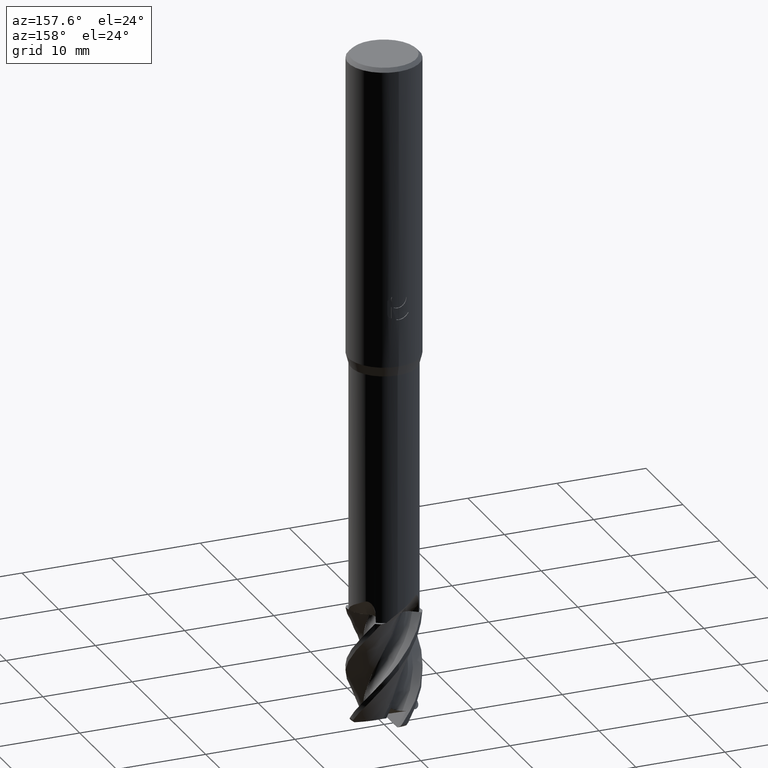
[diagram: clean part render]
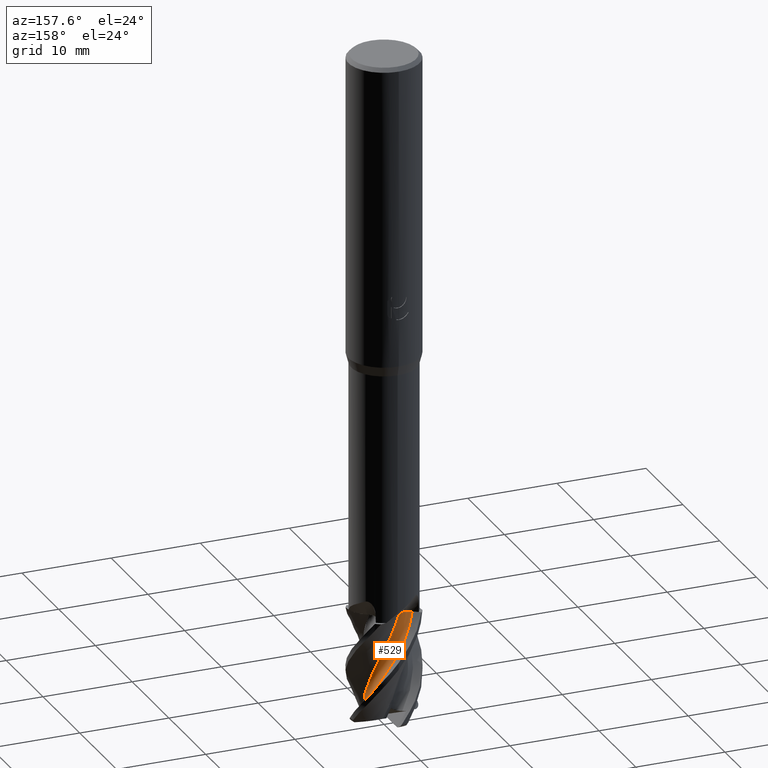
[diagram: same view with one face highlighted and labeled with its STEP entity id]
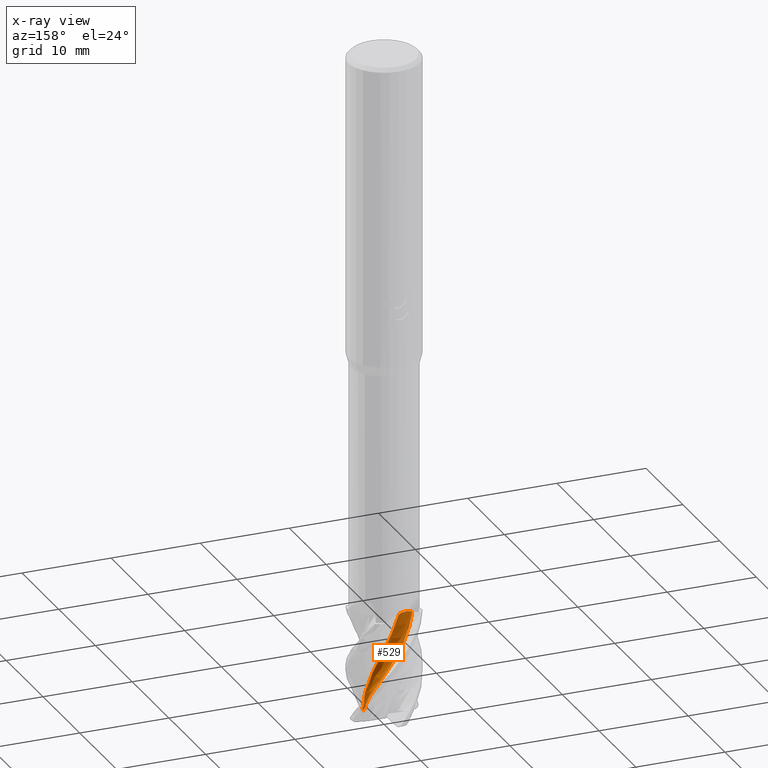
[diagram: x-ray of the same camera — body ghosted, the highlighted face saturated]
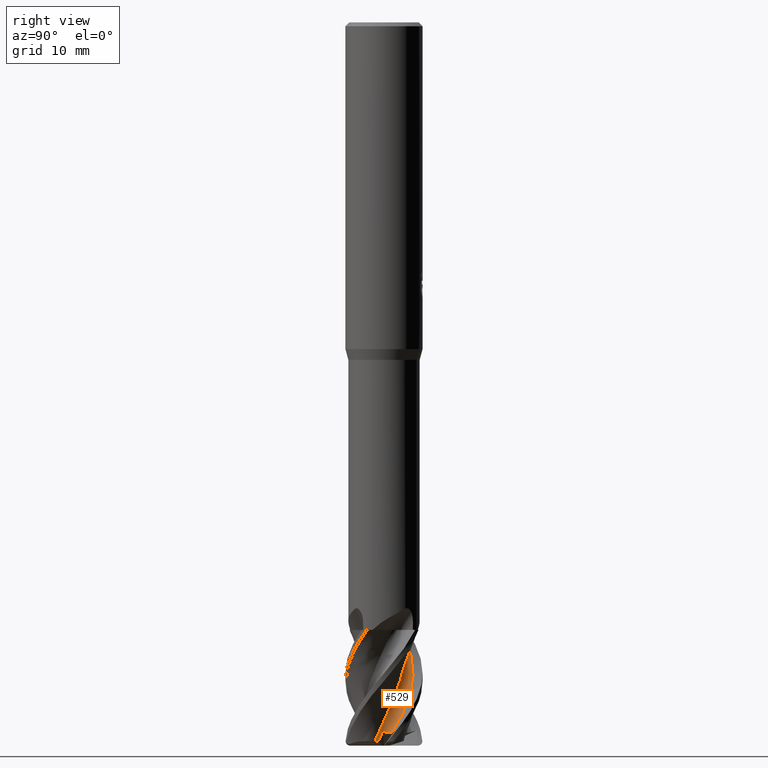
[diagram: same view with one face highlighted and labeled with its STEP entity id]
A machine part, auxiliary view. The second image highlights one B-rep face of the part: STEP entity #529.
The next image is the same camera in x-ray: the body ghosted, the highlighted face saturated — about 0% of this face is hidden behind the body in this view.
A second angle (right view) of the same face is appended — the face is thin or edge-on in the first view.
In plain terms, the highlighted face is a freeform B-spline surface patch.
Its self-contained STEP definition (entity closure, byte-faithful):
#529=ADVANCED_FACE('',(#1518),#1519,.T.);
#547=EDGE_CURVE('',#915,#795,#1537,.T.);
#581=EDGE_CURVE('',#873,#793,#1571,.T.);
#657=EDGE_CURVE('',#793,#1453,#1655,.T.);
#793=VERTEX_POINT('',#1803);
#795=VERTEX_POINT('',#1805);
#825=EDGE_CURVE('',#915,#1185,#1835,.T.);
#873=VERTEX_POINT('',#1887);
#915=VERTEX_POINT('',#1935);
#1185=VERTEX_POINT('',#2227);
#1269=EDGE_CURVE('',#1453,#1185,#2321,.T.);
#1453=VERTEX_POINT('',#2527);
#1473=EDGE_CURVE('',#795,#873,#2549,.T.);
#1518=FACE_OUTER_BOUND('',#2591,.T.);
#1519=B_SPLINE_SURFACE_WITH_KNOTS('',3,3,((#2592,#2593,#2594,#2595,#2596,#2597,#2598,#2599,#2600,#2601,#2602,#2603,#2604,#2605,#2606,#2607,#2608,#2609,#2610,#2611,#2612,#2613,#2614,#2615,#2616,#2617,#2618,#2619,#2620,#2621,#2622,#2623,#2624,#2625,#2626,#2627,#2628,#2629,#2630,#2631),(#2632,#2633,#2634,#2635,#2636,#2637,#2638,#2639,#2640,#2641,#2642,#2643,#2644,#2645,#2646,#2647,#2648,#2649,#2650,#2651,#2652,#2653,#2654,#2655,#2656,#2657,#2658,#2659,#2660,#2661,#2662,#2663,#2664,#2665,#2666,#2667,#2668,#2669,#2670,#2671),(#2672,#2673,#2674,#2675,#2676,#2677,#2678,#2679,#2680,#2681,#2682,#2683,#2684,#2685,#2686,#2687,#2688,#2689,#2690,#2691,#2692,#2693,#2694,#2695,#2696,#2697,#2698,#2699,#2700,#2701,#2702,#2703,#2704,#2705,#2706,#2707,#2708,#2709,#2710,#2711),(#2712,#2713,#2714,#2715,#2716,#2717,#2718,#2719,#2720,#2721,#2722,#2723,#2724,#2725,#2726,#2727,#2728,#2729,#2730,#2731,#2732,#2733,#2734,#2735,#2736,#2737,#2738,#2739,#2740,#2741,#2742,#2743,#2744,#2745,#2746,#2747,#2748,#2749,#2750,#2751),(#2752,#2753,#2754,#2755,#2756,#2757,#2758,#2759,#2760,#2761,#2762,#2763,#2764,#2765,#2766,#2767,#2768,#2769,#2770,#2771,#2772,#2773,#2774,#2775,#2776,#2777,#2778,#2779,#2780,#2781,#2782,#2783,#2784,#2785,#2786,#2787,#2788,#2789,#2790,#2791),(#2792,#2793,#2794,#2795,#2796,#2797,#2798,#2799,#2800,#2801,#2802,#2803,#2804,#2805,#2806,#2807,#2808,#2809,#2810,#2811,#2812,#2813,#2814,#2815,#2816,#2817,#2818,#2819,#2820,#2821,#2822,#2823,#2824,#2825,#2826,#2827,#2828,#2829,#2830,#2831),(#2832,#2833,#2834,#2835,#2836,#2837,#2838,#2839,#2840,#2841,#2842,#2843,#2844,#2845,#2846,#2847,#2848,#2849,#2850,#2851,#2852,#2853,#2854,#2855,#2856,#2857,#2858,#2859,#2860,#2861,#2862,#2863,#2864,#2865,#2866,#2867,#2868,#2869,#2870,#2871)),.UNSPECIFIED.,.F.,.F.,.F.,(4,1,1,1,4),(4,1,2,2,1,2,1,1,2,1,1,2,1,1,1,2,1,1,2,1,1,2,1,1,1,2,1,1,4),(3.86164530321994E-016,0.392699081655247,0.785398163310493,1.17809724496574,1.57079632662099),(0.0,0.439032880743634,0.878065761487268,1.75613152297454,2.63419728446181,3.51226304594907,4.39032880743634,5.70742744966724,7.02452609189815,8.34162473412905,9.65872337635995,10.5367891378472,11.4148548993345,12.2929206608218,13.170986422309,14.0490521837963,14.9271179452836,16.2442165875145,17.5613152297454,18.8784138719763,20.1955125142072,21.0735782756944,21.9516440371817,22.829709798669,23.7077755601562,24.5858413216435,25.4639070831308,26.7810057253617,28.0981043675926),.UNSPECIFIED.);
#1537=B_SPLINE_CURVE_WITH_KNOTS('',3,(#2897,#2898,#2899,#2900,#2901,#2902,#2903,#2904,#2905,#2906,#2907,#2908),.UNSPECIFIED.,.F.,.F.,(4,2,2,2,2,4),(0.0,0.590750583543278,1.01775985295275,1.35254139636512,1.64097265576934,1.94555005966309),.UNSPECIFIED.);
#1571=B_SPLINE_CURVE_WITH_KNOTS('',3,(#3031,#3032,#3033,#3034,#3035,#3036),.UNSPECIFIED.,.F.,.F.,(4,2,4),(0.0,0.435159037768682,0.850980679239074),.UNSPECIFIED.);
#1655=B_SPLINE_CURVE_WITH_KNOTS('',3,(#3736,#3737,#3738,#3739,#3740,#3741,#3742,#3743,#3744,#3745,#3746,#3747,#3748,#3749,#3750,#3751,#3752,#3753,#3754,#3755,#3756,#3757),.UNSPECIFIED.,.F.,.F.,(4,2,2,2,2,2,2,2,2,2,4),(-14.3417121469128,-10.7662979568964,-10.1687027815282,-8.88282886473334,-7.1764688564429,-6.17549704798002,-5.19948750206905,-3.26530079930745,-2.0519605695292,-1.36536635655494,-0.0),.UNSPECIFIED.);
#1803=CARTESIAN_POINT('',(1.96921854836948,-0.951426499107517,-74.5370947645449));
#1805=CARTESIAN_POINT('',(2.07928789235397,-0.102925682737477,-73.441348412288));
#1835=B_SPLINE_CURVE_WITH_KNOTS('',3,(#4994,#4995,#4996,#4997,#4998,#4999,#5000,#5001,#5002,#5003,#5004,#5005,#5006,#5007,#5008,#5009,#5010,#5011,#5012,#5013,#5014,#5015,#5016,#5017,#5018,#5019,#5020,#5021,#5022,#5023,#5024,#5025,#5026,#5027,#5028,#5029,#5030,#5031,#5032,#5033),.UNSPECIFIED.,.F.,.F.,(4,1,2,2,1,2,1,1,2,1,1,2,1,1,1,2,1,1,2,1,1,2,1,1,1,2,1,1,4),(0.0,0.439032880743634,0.878065761487268,1.75613152297454,2.63419728446181,3.51226304594907,4.39032880743634,5.70742744966724,7.02452609189815,8.34162473412905,9.65872337635995,10.5367891378472,11.4148548993345,12.2929206608218,13.170986422309,14.0490521837963,14.9271179452836,16.2442165875145,17.5613152297454,18.8784138719763,20.1955125142072,21.0735782756944,21.9516440371817,22.829709798669,23.7077755601562,24.5858413216435,25.4639070831308,26.7810057253617,28.0981043675926),.UNSPECIFIED.);
#1887=CARTESIAN_POINT('',(2.00383752489607,-0.562090333234073,-74.5258463785281));
#1935=CARTESIAN_POINT('',(2.88306687665594,0.868565806805211,-73.5735661012201));
#2227=CARTESIAN_POINT('',(-2.43105359182728,1.7766079108557,-63.0));
#2321=B_SPLINE_CURVE_WITH_KNOTS('',3,(#7689,#7690,#7691,#7692,#7693,#7694,#7695,#7696,#7697,#7698),.UNSPECIFIED.,.F.,.F.,(4,2,2,2,4),(0.0,0.449322067639275,0.89863545065615,1.34791089101965,1.79976927709847),.UNSPECIFIED.);
#2527=CARTESIAN_POINT('',(-0.840439479933691,2.01974961307368,-63.0));
#2549=B_SPLINE_CURVE_WITH_KNOTS('',3,(#9793,#9794,#9795,#9796,#9797,#9798,#9799,#9800),.UNSPECIFIED.,.F.,.F.,(4,2,2,4),(0.0,0.873910979636382,2.22012321292324,4.76113550023293),.UNSPECIFIED.);
#2591=EDGE_LOOP('',(#10290,#10291,#10292,#10293,#10294,#10295));
#2592=CARTESIAN_POINT('',(-1.23488445277643,-1.80476047958255,-83.0));
#2593=CARTESIAN_POINT('',(-1.24899732605723,-1.8038329316075,-82.8541668060559));
#2594=CARTESIAN_POINT('',(-1.23526252068316,-1.82663038862667,-82.5622807470162));
#2595=CARTESIAN_POINT('',(-1.13196860429146,-1.89424450104118,-82.2702886162226));
#2596=CARTESIAN_POINT('',(-0.902413143319348,-2.01289174000655,-81.8330158930863));
#2597=CARTESIAN_POINT('',(-0.762688947168786,-2.06561187469398,-81.5416795417568));
#2598=CARTESIAN_POINT('',(-0.513749774778815,-2.14213575042085,-80.9583014420079));
#2599=CARTESIAN_POINT('',(-0.258072170567404,-2.19671372933943,-80.3748465653797));
#2600=CARTESIAN_POINT('',(0.0144985536196439,-2.20401655425792,-79.791351998043));
#2601=CARTESIAN_POINT('',(0.295245856111041,-2.18308142086931,-79.2080163304363));
#2602=CARTESIAN_POINT('',(0.630854993808257,-2.12568898632936,-78.4790300952215));
#2603=CARTESIAN_POINT('',(1.11213080316052,-1.92898425431896,-77.3124283706013));
#2604=CARTESIAN_POINT('',(1.43445985979555,-1.68229480317857,-76.4370925693439));
#2605=CARTESIAN_POINT('',(1.72921651348788,-1.37403033815834,-75.5621178036424));
#2606=CARTESIAN_POINT('',(1.96459926422362,-1.04392707713692,-74.6874682186711));
#2607=CARTESIAN_POINT('',(2.14912348513055,-0.556023870373244,-73.520693184653));
#2608=CARTESIAN_POINT('',(2.19405063765961,-0.215926956189522,-72.7913204102272));
#2609=CARTESIAN_POINT('',(2.20221304361762,0.0678076341076892,-72.2079802032174));
#2610=CARTESIAN_POINT('',(2.18396201899548,0.341577948461111,-71.624798795716));
#2611=CARTESIAN_POINT('',(2.08938065581622,0.723892652717236,-70.7499348305022));
#2612=CARTESIAN_POINT('',(1.9291385075934,1.08375945433396,-69.8747905124629));
#2613=CARTESIAN_POINT('',(1.77335401741663,1.30982738906713,-69.2912994637427));
#2614=CARTESIAN_POINT('',(1.58926916721142,1.52594071794985,-68.7079671062677));
#2615=CARTESIAN_POINT('',(1.34297618746993,1.76454731028696,-67.9790039941923));
#2616=CARTESIAN_POINT('',(0.898438691472285,2.03713975274847,-66.8124608541564));
#2617=CARTESIAN_POINT('',(0.509456702744176,2.1512074980498,-65.9371323317856));
#2618=CARTESIAN_POINT('',(0.0874087994749067,2.20689306549706,-65.0621270919979));
#2619=CARTESIAN_POINT('',(-0.317679591668418,2.20197610301907,-64.1874489842645));
#2620=CARTESIAN_POINT('',(-0.82071376219955,2.06262178231599,-63.0206690115767));
#2621=CARTESIAN_POINT('',(-1.12184917101573,1.89784740920309,-62.2913163477237));
#2622=CARTESIAN_POINT('',(-1.35566439527592,1.73678185835601,-61.7079993714707));
#2623=CARTESIAN_POINT('',(-1.56568695755122,1.56041528965224,-61.1248315244738));
#2624=CARTESIAN_POINT('',(-1.81815366706804,1.25855193265369,-60.2499532970464));
#2625=CARTESIAN_POINT('',(-2.01393533789101,0.916725049969723,-59.3747610467907));
#2626=CARTESIAN_POINT('',(-2.10446384331179,0.657007967421567,-58.7912202463649));
#2627=CARTESIAN_POINT('',(-2.17014509918083,0.379924120016686,-58.2078341362455));
#2628=CARTESIAN_POINT('',(-2.21699675717179,0.0391630045993122,-57.4788547496478));
#2629=CARTESIAN_POINT('',(-2.17378314227288,-0.479398483998543,-56.3124514593551));
#2630=CARTESIAN_POINT('',(-2.03852426301241,-0.855536820981206,-55.4372799597113));
#2631=CARTESIAN_POINT('',(-1.93928855728664,-1.03917246562902,-54.9998296805427));
#2632=CARTESIAN_POINT('',(-1.08451158889957,-1.81173773043379,-83.0));
#2633=CARTESIAN_POINT('',(-1.09863034141902,-1.81093688108678,-82.8541671629844));
#2634=CARTESIAN_POINT('',(-1.08473085392731,-1.83110313096932,-82.5623070169101));
#2635=CARTESIAN_POINT('',(-0.981379728096369,-1.89018503989109,-82.2703527964518));
#2636=CARTESIAN_POINT('',(-0.752939838405735,-1.99168969430802,-81.8330529592923));
#2637=CARTESIAN_POINT('',(-0.615135509655419,-2.03448561779381,-81.5416778281607));
#2638=CARTESIAN_POINT('',(-0.370925988694004,-2.09373975325885,-80.9583050998332));
#2639=CARTESIAN_POINT('',(-0.121501739779288,-2.1314681665396,-80.3748645109664));
#2640=CARTESIAN_POINT('',(0.141567798615221,-2.12274013399832,-79.7913888035247));
#2641=CARTESIAN_POINT('',(0.410989172493194,-2.08635566284761,-79.2080533094641));
#2642=CARTESIAN_POINT('',(0.731063246517232,-2.01162030106178,-78.4790457319273));
#2643=CARTESIAN_POINT('',(1.18312867832717,-1.79422066724337,-77.3124362796304));
#2644=CARTESIAN_POINT('',(1.479403960041,-1.53789689287702,-76.437139976668));
#2645=CARTESIAN_POINT('',(1.74578903726565,-1.22371072705594,-75.5621621892229));
#2646=CARTESIAN_POINT('',(1.95344089754611,-0.892011182491829,-74.68747127208));
#2647=CARTESIAN_POINT('',(2.10282070282789,-0.411409907932109,-73.5207088952952));
#2648=CARTESIAN_POINT('',(2.12645537778256,-0.0810764576937081,-72.7913603250601));
#2649=CARTESIAN_POINT('',(2.11795770581645,0.192926576838837,-72.2080208666805));
#2650=CARTESIAN_POINT('',(2.08452762775805,0.455698913365491,-71.62482152529));
#2651=CARTESIAN_POINT('',(1.97123683948067,0.818460703660898,-70.7499414689971));
#2652=CARTESIAN_POINT('',(1.79601305003177,1.15579013856807,-69.8748140745825));
#2653=CARTESIAN_POINT('',(1.63282080373361,1.36463804751105,-69.2913415439498));
#2654=CARTESIAN_POINT('',(1.44288894569609,1.56236269909671,-68.7080090231373));
#2655=CARTESIAN_POINT('',(1.19173163294877,1.77805181210462,-67.9790218780059));
#2656=CARTESIAN_POINT('',(0.747768691567792,2.01475705395103,-66.8124640945539));
#2657=CARTESIAN_POINT('',(0.3664084683967,2.10214371321114,-65.9371741704163));
#2658=CARTESIAN_POINT('',(-0.0436756627956686,2.13148203992678,-65.0621695023098));
#2659=CARTESIAN_POINT('',(-0.433687544402392,2.10325820578228,-64.1874534211358));
#2660=CARTESIAN_POINT('',(-0.910059549256709,1.93984138038762,-63.0206867045836));
#2661=CARTESIAN_POINT('',(-1.19072787927633,1.76364777195912,-62.2913558707407));
#2662=CARTESIAN_POINT('',(-1.40684529137408,1.59488657288887,-61.708036879992));
#2663=CARTESIAN_POINT('',(-1.59903326776186,1.41277218418966,-61.124849462215));
#2664=CARTESIAN_POINT('',(-1.82468901156345,1.10736287388383,-60.2499567765954));
#2665=CARTESIAN_POINT('',(-1.99343602107371,0.766755437875545,-59.3747871052534));
#2666=CARTESIAN_POINT('',(-2.06566625299152,0.511237526647148,-58.791270725813));
#2667=CARTESIAN_POINT('',(-2.11301018606734,0.240318205493875,-58.207890904187));
#2668=CARTESIAN_POINT('',(-2.13844864988664,-0.0907938720674441,-57.4788895877153));
#2669=CARTESIAN_POINT('',(-2.06669974484112,-0.587697334611817,-56.3124558169174));
#2670=CARTESIAN_POINT('',(-1.91461266260775,-0.942190860326765,-55.4373053014624));
#2671=CARTESIAN_POINT('',(-1.80835714786881,-1.11345332349682,-54.9998497342426));
#2672=CARTESIAN_POINT('',(-0.786603781588488,-1.88548678835019,-83.0));
#2673=CARTESIAN_POINT('',(-0.800784671360798,-1.88493694261083,-82.8541678685868));
#2674=CARTESIAN_POINT('',(-0.785509562524195,-1.89990737792584,-82.5623589510549));
#2675=CARTESIAN_POINT('',(-0.678651110776294,-1.94195122631184,-82.2704796773856));
#2676=CARTESIAN_POINT('',(-0.445624949661551,-2.00873431190356,-81.8331262370445));
#2677=CARTESIAN_POINT('',(-0.307713068837983,-2.03092252829303,-81.5416744405081));
#2678=CARTESIAN_POINT('',(-0.0660933513417461,-2.05376366450556,-80.9583123311222));
#2679=CARTESIAN_POINT('',(0.177527243429904,-2.05531332009506,-80.3748999883942));
#2680=CARTESIAN_POINT('',(0.427973275574157,-2.01075207059696,-79.7914615660831));
#2681=CARTESIAN_POINT('',(0.680891157821653,-1.93897154784816,-79.2081264149138));
#2682=CARTESIAN_POINT('',(0.976798272428488,-1.82337993949285,-78.4790766430561));
#2683=CARTESIAN_POINT('',(1.37868480681983,-1.55298337875383,-77.3124519173308));
#2684=CARTESIAN_POINT('',(1.6266947197847,-1.26703442564304,-76.437233703537));
#2685=CARTESIAN_POINT('',(1.83870342510886,-0.929725077585688,-75.5622499319898));
#2686=CARTESIAN_POINT('',(1.99153995880013,-0.583806125795271,-74.6874773298698));
#2687=CARTESIAN_POINT('',(2.06774204391787,-0.103830063710398,-73.5207399548423));
#2688=CARTESIAN_POINT('',(2.04491818436901,0.215447771483156,-72.7914392203663));
#2689=CARTESIAN_POINT('',(1.99923749803661,0.476616867208993,-72.2081012703268));
#2690=CARTESIAN_POINT('',(1.93108223950447,0.723434000784042,-71.6248664595302));
#2691=CARTESIAN_POINT('',(1.77260503953936,1.05453822143192,-70.7499545984251));
#2692=CARTESIAN_POINT('',(1.55846203956992,1.352760033545,-69.8748606481894));
#2693=CARTESIAN_POINT('',(1.37360965108071,1.53012093038335,-69.2914247367665));
#2694=CARTESIAN_POINT('',(1.16467378199884,1.69340109323806,-68.7080918880248));
#2695=CARTESIAN_POINT('',(0.894676443212514,1.86519926108984,-67.9790572382185));
#2696=CARTESIAN_POINT('',(0.437591423849087,2.0299167494119,-66.812470491868));
#2697=CARTESIAN_POINT('',(0.0608614635022938,2.06092156927556,-65.9372569149987));
#2698=CARTESIAN_POINT('',(-0.335777426581477,2.03281900824323,-65.0622533133472));
#2699=CARTESIAN_POINT('',(-0.704910898937065,1.95199588010827,-64.1874622244403));
#2700=CARTESIAN_POINT('',(-1.13753852775925,1.72986167268038,-63.0207217019612));
#2701=CARTESIAN_POINT('',(-1.38182230885188,1.52269542669873,-62.2914339761049));
#2702=CARTESIAN_POINT('',(-1.56561182005094,1.33150844365676,-61.7081110618311));
#2703=CARTESIAN_POINT('',(-1.72442381722574,1.13080870095373,-61.124884938782));
#2704=CARTESIAN_POINT('',(-1.89787901641214,0.80764729094833,-60.2499636719342));
#2705=CARTESIAN_POINT('',(-2.01208315701336,0.458727591534708,-59.3748385797379));
#2706=CARTESIAN_POINT('',(-2.04605470911706,0.204329734823146,-58.7913705456462));
#2707=CARTESIAN_POINT('',(-2.05428031911861,-0.0615551778168808,-58.2080031066763));
#2708=CARTESIAN_POINT('',(-2.03306436375337,-0.381888446442428,-57.4789584638815));
#2709=CARTESIAN_POINT('',(-1.89564432370464,-0.846832361763252,-56.3124644291789));
#2710=CARTESIAN_POINT('',(-1.70130063444149,-1.16473731427619,-55.4373554865941));
#2711=CARTESIAN_POINT('',(-1.57608811271485,-1.31405013039458,-54.9998893793178));
#2712=CARTESIAN_POINT('',(-0.416058765089823,-2.15871202503001,-83.0));
#2713=CARTESIAN_POINT('',(-0.430469863605397,-2.15847438608124,-82.8541687417491));
#2714=CARTESIAN_POINT('',(-0.410305575600104,-2.16703343459151,-82.5624232153674));
#2715=CARTESIAN_POINT('',(-0.288805502674944,-2.18747704743134,-82.2706366821807));
#2716=CARTESIAN_POINT('',(-0.029491165860139,-2.20877105655145,-81.8332169124697));
#2717=CARTESIAN_POINT('',(0.120399618490996,-2.20246008303713,-81.5416702488391));
#2718=CARTESIAN_POINT('',(0.379332912995823,-2.1733485182805,-80.95832127898));
#2719=CARTESIAN_POINT('',(0.635678431201355,-2.12142520851848,-80.3749438890753));
#2720=CARTESIAN_POINT('',(0.889199154995331,-2.01995495895793,-79.7915516036445));
#2721=CARTESIAN_POINT('',(1.13956339050996,-1.8896440087195,-79.2082168771856));
#2722=CARTESIAN_POINT('',(1.42543018578757,-1.70355528649597,-78.479114894077));
#2723=CARTESIAN_POINT('',(1.78819494281398,-1.33090328800892,-77.3124712648457));
#2724=CARTESIAN_POINT('',(1.98631856277315,-0.976189070205571,-76.4373496812965));
#2725=CARTESIAN_POINT('',(2.13623904175705,-0.575617759543988,-75.5623585081932));
#2726=CARTESIAN_POINT('',(2.22126777676851,-0.178524929873727,-74.6874848110669));
#2727=CARTESIAN_POINT('',(2.19569144677631,0.342592280921851,-73.520778388641));
#2728=CARTESIAN_POINT('',(2.10213263997197,0.673217272611002,-72.7915368601038));
#2729=CARTESIAN_POINT('',(1.99755142911055,0.937944268622067,-72.2082007501321));
#2730=CARTESIAN_POINT('',(1.87211026409327,1.1825825194267,-71.6249220647009));
#2731=CARTESIAN_POINT('',(1.63283465109731,1.49575066758298,-70.7499708390081));
#2732=CARTESIAN_POINT('',(1.34230245982284,1.76211345196191,-69.8749182856131));
#2733=CARTESIAN_POINT('',(1.10935543346622,1.90826941911325,-69.2915276762187));
#2734=CARTESIAN_POINT('',(0.854308398447579,2.03472103924008,-68.7081944315167));
#2735=CARTESIAN_POINT('',(0.533004442792807,2.15650433953246,-67.9791009842899));
#2736=CARTESIAN_POINT('',(0.0164085283336564,2.22898425211914,-66.8124784208326));
#2737=CARTESIAN_POINT('',(-0.386270155306047,2.17918957194632,-65.9373592646119));
#2738=CARTESIAN_POINT('',(-0.79724877527366,2.06375945645385,-65.0623570628122));
#2739=CARTESIAN_POINT('',(-1.16764072554433,1.89805192701278,-64.1874730855655));
#2740=CARTESIAN_POINT('',(-1.57334823186988,1.56942783609461,-63.0207649867221));
#2741=CARTESIAN_POINT('',(-1.78498525976277,1.29844901868784,-62.2915306564953));
#2742=CARTESIAN_POINT('',(-1.93684393587363,1.05762354171972,-61.7082028245116));
#2743=CARTESIAN_POINT('',(-2.06006793524628,0.812006254311251,-61.1249288342464));
#2744=CARTESIAN_POINT('',(-2.17136719026582,0.43427589095789,-60.2499721820951));
#2745=CARTESIAN_POINT('',(-2.21475015767113,0.0425256238399583,-59.3749022973149));
#2746=CARTESIAN_POINT('',(-2.1950547322385,-0.232282299466132,-58.7914940595752));
#2747=CARTESIAN_POINT('',(-2.14617492252008,-0.513645718589819,-58.2081419531854));
#2748=CARTESIAN_POINT('',(-2.0541114256272,-0.8458222154787,-57.4790437036825));
#2749=CARTESIAN_POINT('',(-1.80732914143451,-1.30417079176894,-56.3124750923945));
#2750=CARTESIAN_POINT('',(-1.53341690645799,-1.59562378207135,-55.4374175281178));
#2751=CARTESIAN_POINT('',(-1.36933103387525,-1.72539809398985,-54.9999384368909));
#2752=CARTESIAN_POINT('',(-0.178271061176076,-2.5529410162,-83.0));
#2753=CARTESIAN_POINT('',(-0.19301432051037,-2.55290372677635,-82.8541692965989));
#2754=CARTESIAN_POINT('',(-0.165879482722588,-2.55741030317193,-82.5624640540774));
#2755=CARTESIAN_POINT('',(-0.0225862485134186,-2.56350059303088,-82.2707364558477));
#2756=CARTESIAN_POINT('',(0.278423049058572,-2.55282735505099,-81.8332745347678));
#2757=CARTESIAN_POINT('',(0.450286965612952,-2.52477019671928,-81.5416675840769));
#2758=CARTESIAN_POINT('',(0.745097120335277,-2.45428534674745,-80.9583269662093));
#2759=CARTESIAN_POINT('',(1.03366183962239,-2.3578282355697,-80.3749717864429));
#2760=CARTESIAN_POINT('',(1.31180087219477,-2.20495676174592,-79.7916088211272));
#2761=CARTESIAN_POINT('',(1.58220390068328,-2.01959273102894,-79.2082743639151));
#2762=CARTESIAN_POINT('',(1.88577195050012,-1.76453004170504,-78.4791392032837));
#2763=CARTESIAN_POINT('',(2.25152289405474,-1.28243404561963,-77.3124835655773));
#2764=CARTESIAN_POINT('',(2.42987162683113,-0.845097859866189,-76.4374233739002));
#2765=CARTESIAN_POINT('',(2.54663794437781,-0.362319689142022,-75.5624275153609));
#2766=CARTESIAN_POINT('',(2.58860244728992,0.108000636978197,-74.6874895644352));
#2767=CARTESIAN_POINT('',(2.4847373992205,0.706075861537909,-73.5208028141082));
#2768=CARTESIAN_POINT('',(2.33016933422945,1.07425286796219,-72.7915988997128));
#2769=CARTESIAN_POINT('',(2.17253184311836,1.36480670636484,-72.208263976244));
#2770=CARTESIAN_POINT('',(1.99333082309992,1.62935374248877,-71.6249573950354));
#2771=CARTESIAN_POINT('',(1.67254243319028,1.95687036005051,-70.7499811568622));
#2772=CARTESIAN_POINT('',(1.29924316418737,2.22303098995751,-69.8749549118671));
#2773=CARTESIAN_POINT('',(1.00992050207451,2.35876152468646,-69.2915930975491));
#2774=CARTESIAN_POINT('',(0.69817834019238,2.4688330696859,-68.7082595906934));
#2775=CARTESIAN_POINT('',(0.310333148444075,2.56404169624663,-67.9791287938452));
#2776=CARTESIAN_POINT('',(-0.296541422935041,2.57407723762388,-66.8124834414606));
#2777=CARTESIAN_POINT('',(-0.754113864387623,2.45956237222536,-65.9374243401961));
#2778=CARTESIAN_POINT('',(-1.21175886778162,2.26893837374058,-65.0624229592816));
#2779=CARTESIAN_POINT('',(-1.61579660200143,2.02528831732185,-64.1874799956443));
#2780=CARTESIAN_POINT('',(-2.03738373006939,1.58797731326932,-63.0207924915658));
#2781=CARTESIAN_POINT('',(-2.24327809776781,1.24554942240247,-62.2915920961035));
#2782=CARTESIAN_POINT('',(-2.38463146292548,0.946644169961518,-61.708261136898));
#2783=CARTESIAN_POINT('',(-2.49216474948792,0.645909258715472,-61.1249567358852));
#2784=CARTESIAN_POINT('',(-2.56692069153596,0.193977530541885,-60.2499775903247));
#2785=CARTESIAN_POINT('',(-2.56126262543718,-0.264445049423906,-59.374942787569));
#2786=CARTESIAN_POINT('',(-2.49979506143621,-0.578646679670586,-58.7915725396806));
#2787=CARTESIAN_POINT('',(-2.40407917427002,-0.896163363256269,-58.2082301981472));
#2788=CARTESIAN_POINT('',(-2.25109221398565,-1.26639326764943,-57.4790978577976));
#2789=CARTESIAN_POINT('',(-1.90074703779155,-1.76049857586521,-56.3124818833289));
#2790=CARTESIAN_POINT('',(-1.5431994828606,-2.05796162869321,-55.43745694425));
#2791=CARTESIAN_POINT('',(-1.33572190407132,-2.18456028214735,-54.9999696120479));
#2792=CARTESIAN_POINT('',(-0.132400346467123,-2.85639847521664,-83.0));
#2793=CARTESIAN_POINT('',(-0.147399286402423,-2.85639983370382,-82.8541693979699));
#2794=CARTESIAN_POINT('',(-0.114937643363315,-2.86018893940048,-82.5624715153654));
#2795=CARTESIAN_POINT('',(0.0454391332933259,-2.86299932007086,-82.2707546843173));
#2796=CARTESIAN_POINT('',(0.380282495772492,-2.84327562540789,-81.8332850626246));
#2797=CARTESIAN_POINT('',(0.571226838558932,-2.80743143377019,-81.5416670979662));
#2798=CARTESIAN_POINT('',(0.898687541798352,-2.72061894123347,-80.9583280045242));
#2799=CARTESIAN_POINT('',(1.21845647336857,-2.60495458510665,-80.3749768838059));
#2800=CARTESIAN_POINT('',(1.52487058882996,-2.42670729570824,-79.7916192744334));
#2801=CARTESIAN_POINT('',(1.82165996152373,-2.21255007965887,-79.2082848670255));
#2802=CARTESIAN_POINT('',(2.15372622781858,-1.91952439918156,-78.4791436440593));
#2803=CARTESIAN_POINT('',(2.54923751313705,-1.37078710705036,-77.3124858079761));
#2804=CARTESIAN_POINT('',(2.73648593543575,-0.877521680878431,-76.4374368490768));
#2805=CARTESIAN_POINT('',(2.85380618737693,-0.335656620433634,-75.5624401113829));
#2806=CARTESIAN_POINT('',(2.8879304821842,0.190748726763119,-74.6874904367531));
#2807=CARTESIAN_POINT('',(2.75548331853994,0.856192924757024,-73.5208072752963));
#2808=CARTESIAN_POINT('',(2.57292178849296,1.26306166214405,-72.7916102371352));
#2809=CARTESIAN_POINT('',(2.38919751367254,1.58305711385647,-72.2082755248205));
#2810=CARTESIAN_POINT('',(2.18196658746308,1.87358049935737,-71.6249638513149));
#2811=CARTESIAN_POINT('',(1.81463759591457,2.23072934469319,-70.7499830495194));
#2812=CARTESIAN_POINT('',(1.39031309757154,2.51788092877346,-69.8749616022439));
#2813=CARTESIAN_POINT('',(1.06361071857754,2.66157326307736,-69.2916050523699));
#2814=CARTESIAN_POINT('',(0.712772930483119,2.77602083309257,-68.7082714928829));
#2815=CARTESIAN_POINT('',(0.27716737542434,2.87183887841814,-67.9791338714255));
#2816=CARTESIAN_POINT('',(-0.40123774197252,2.86644868153346,-66.8124843690407));
#2817=CARTESIAN_POINT('',(-0.909128880942728,2.72607911803493,-65.9374362192123));
#2818=CARTESIAN_POINT('',(-1.41469764148773,2.50105104048925,-65.06243500881));
#2819=CARTESIAN_POINT('',(-1.85934137021837,2.21798229398243,-64.1874812660976));
#2820=CARTESIAN_POINT('',(-2.31843636215298,1.71778561481768,-63.0207975283227));
#2821=CARTESIAN_POINT('',(-2.53902201011307,1.32988941079469,-62.2916033090409));
#2822=CARTESIAN_POINT('',(-2.6887227461302,0.992534536325316,-61.7082718026014));
#2823=CARTESIAN_POINT('',(-2.80065414917047,0.653851408576659,-61.124961819613));
#2824=CARTESIAN_POINT('',(-2.87183439337775,0.146898489326949,-60.2499785889227));
#2825=CARTESIAN_POINT('',(-2.85298286354408,-0.365096782304465,-59.3749501925896));
#2826=CARTESIAN_POINT('',(-2.77583922345272,-0.714216633863743,-58.7915868787526));
#2827=CARTESIAN_POINT('',(-2.6605018451679,-1.06594775817316,-58.2082463196838));
#2828=CARTESIAN_POINT('',(-2.47970217441936,-1.47515629147188,-57.4791077518808));
#2829=CARTESIAN_POINT('',(-2.0746980783306,-2.01770390788182,-56.3124831006113));
#2830=CARTESIAN_POINT('',(-1.66717541718302,-2.34020532749083,-55.4374641605473));
#2831=CARTESIAN_POINT('',(-1.43216407655006,-2.47591823936735,-54.9999753077344));
#2832=CARTESIAN_POINT('',(-0.139362559970867,-3.00677203606764,-83.0));
#2833=CARTESIAN_POINT('',(-0.154488198420838,-3.00676752894749,-82.8541693776923));
#2834=CARTESIAN_POINT('',(-0.119395333329493,-3.01072105137633,-82.562470022822));
#2835=CARTESIAN_POINT('',(0.0495136553825723,-3.01358780257566,-82.270751038049));
#2836=CARTESIAN_POINT('',(0.401499490032323,-2.99274681326026,-81.8332829565777));
#2837=CARTESIAN_POINT('',(0.602367852567549,-2.95498175882406,-81.5416671950143));
#2838=CARTESIAN_POINT('',(0.947097819230742,-2.86343788609227,-80.958327797016));
#2839=CARTESIAN_POINT('',(1.28371569412346,-2.74151848989008,-80.3749758639997));
#2840=CARTESIAN_POINT('',(1.60615971767269,-2.55376841893725,-79.7916171835339));
#2841=CARTESIAN_POINT('',(1.91839729752859,-2.32828372300392,-79.2082827659174));
#2842=CARTESIAN_POINT('',(2.26780493376653,-2.01972124710059,-78.4791427555978));
#2843=CARTESIAN_POINT('',(2.68400819566867,-1.44177150398846,-77.3124853609378));
#2844=CARTESIAN_POINT('',(2.88088835120685,-0.922451342265679,-76.4374341496283));
#2845=CARTESIAN_POINT('',(3.00412745718979,-0.352214112249865,-75.562437595689));
#2846=CARTESIAN_POINT('',(3.03984526078967,0.201922287049661,-74.6874902612174));
#2847=CARTESIAN_POINT('',(2.90009265029526,0.902510166033331,-73.5208063829511));
#2848=CARTESIAN_POINT('',(2.70776553059193,1.33067041024773,-72.7916079685573));
#2849=CARTESIAN_POINT('',(2.51430803507525,1.66732496614246,-72.2082732154082));
#2850=CARTESIAN_POINT('',(2.29607760809882,1.97302630358954,-71.6249625599941));
#2851=CARTESIAN_POINT('',(1.90919383254501,2.3488826184208,-70.7499826688872));
#2852=CARTESIAN_POINT('',(1.46233046977682,2.65101358849204,-69.8749602642031));
#2853=CARTESIAN_POINT('',(1.11840732532054,2.80211196495538,-69.2916026594505));
#2854=CARTESIAN_POINT('',(0.749180273748313,2.92240469979399,-68.708269113575));
#2855=CARTESIAN_POINT('',(0.290656751151021,3.02308478454958,-67.9791328570607));
#2856=CARTESIAN_POINT('',(-0.423635502554671,3.01711644223991,-66.8124841805675));
#2857=CARTESIAN_POINT('',(-0.958206978343258,2.86912245119262,-65.9374338463611));
#2858=CARTESIAN_POINT('',(-1.49012177327174,2.6321279652193,-65.0624325951244));
#2859=CARTESIAN_POINT('',(-1.95807086886598,2.33398037331831,-64.1874810106363));
#2860=CARTESIAN_POINT('',(-2.44122569528788,1.80711912483425,-63.0207965194713));
#2861=CARTESIAN_POINT('',(-2.67322854189379,1.39875469891896,-62.2916010663529));
#2862=CARTESIAN_POINT('',(-2.83062315111926,1.04370124530597,-61.7082696688051));
#2863=CARTESIAN_POINT('',(-2.94830059252008,0.687182953685622,-61.1249608057478));
#2864=CARTESIAN_POINT('',(-3.02302410506513,0.15341871561296,-60.2499783888033));
#2865=CARTESIAN_POINT('',(-3.00295042338895,-0.385611096522313,-59.374948709085));
#2866=CARTESIAN_POINT('',(-2.92160579207364,-0.753028803538984,-58.7915840091135));
#2867=CARTESIAN_POINT('',(-2.80010205450484,-1.12309663726576,-58.2082430961469));
#2868=CARTESIAN_POINT('',(-2.60965119704938,-1.55371739579842,-57.4791057715535));
#2869=CARTESIAN_POINT('',(-2.18298621801616,-2.12479813746491,-56.3124828628908));
#2870=CARTESIAN_POINT('',(-1.75381706840302,-2.46412559112678,-55.4374627149563));
#2871=CARTESIAN_POINT('',(-1.50643184140715,-2.60685707746307,-54.9999741684012));
#2897=CARTESIAN_POINT('',(2.88306687665266,0.86856580679411,-73.5735661012417));
#2898=CARTESIAN_POINT('',(2.7158318302422,0.780624955097012,-73.6290196500217));
#2899=CARTESIAN_POINT('',(2.56205771342925,0.672555214463167,-73.6602423908891));
#2900=CARTESIAN_POINT('',(2.34152537844837,0.463427930542651,-73.6656841426154));
#2901=CARTESIAN_POINT('',(2.2587363167885,0.365144877387055,-73.6533592566993));
#2902=CARTESIAN_POINT('',(2.14666092573586,0.176460253001571,-73.5962538031976));
#2903=CARTESIAN_POINT('',(2.11104560120944,0.0911332232601378,-73.5596767563898));
#2904=CARTESIAN_POINT('',(2.0771037406895,-0.0668445440388449,-73.4691216011708));
#2905=CARTESIAN_POINT('',(2.07494349091812,-0.136729443556266,-73.4198888992485));
#2906=CARTESIAN_POINT('',(2.09743453573265,-0.270126386764423,-73.3069197436781));
#2907=CARTESIAN_POINT('',(2.12320125793649,-0.330870677777607,-73.2443981615931));
#2908=CARTESIAN_POINT('',(2.16009232110929,-0.38306380232097,-73.1801505444324));
#3031=CARTESIAN_POINT('',(2.18001757895516,-0.160772001908447,-74.468602008881));
#3032=CARTESIAN_POINT('',(2.10360777168885,-0.281542591603507,-74.4934290602472));
#3033=CARTESIAN_POINT('',(2.04329308416531,-0.413985853627923,-74.5130264901969));
#3034=CARTESIAN_POINT('',(1.97062314976662,-0.686540824594645,-74.5366383832069));
#3035=CARTESIAN_POINT('',(1.95653812566317,-0.825222216513017,-74.5412148849589));
#3036=CARTESIAN_POINT('',(1.97025874442901,-0.962427521992625,-74.5367567856773));
#3736=CARTESIAN_POINT('',(1.6997384762892,-1.37495422449819,-75.64001140203));
#3737=CARTESIAN_POINT('',(1.96915893523773,-1.0413685378708,-74.7276847028261));
#3738=CARTESIAN_POINT('',(2.15523910019399,-0.617796635293232,-73.6855623145536));
#3739=CARTESIAN_POINT('',(2.18754007238004,-0.050324515865837,-72.4934860689769));
#3740=CARTESIAN_POINT('',(2.18772478401122,0.0296200859640707,-72.3291954869126));
#3741=CARTESIAN_POINT('',(2.17378283141887,0.29394105515425,-71.7658027567762));
#3742=CARTESIAN_POINT('',(2.14287978127477,0.468546733006295,-71.3748034302929));
#3743=CARTESIAN_POINT('',(2.02696902205724,0.854367059242018,-70.4733756782752));
#3744=CARTESIAN_POINT('',(1.92518083281747,1.06668356846007,-69.9496385787519));
#3745=CARTESIAN_POINT('',(1.7050173979257,1.37663018437342,-69.1371005604728));
#3746=CARTESIAN_POINT('',(1.61538761181525,1.479673996497,-68.8601183976387));
#3747=CARTESIAN_POINT('',(1.41765280054804,1.66974002851869,-68.2727253808523));
#3748=CARTESIAN_POINT('',(1.31351896395352,1.75291071307849,-67.9797493676586));
#3749=CARTESIAN_POINT('',(0.988465428435853,1.96860819583909,-67.1096252416237));
#3750=CARTESIAN_POINT('',(0.744769502246052,2.07493822469898,-66.5157383646549));
#3751=CARTESIAN_POINT('',(0.31596633940552,2.17049857660895,-65.5764355289797));
#3752=CARTESIAN_POINT('',(0.151282478209866,2.18743378037913,-65.2414393985895));
#3753=CARTESIAN_POINT('',(-0.113761706848317,2.18547219045461,-64.6670361292655));
#3754=CARTESIAN_POINT('',(-0.208286983747335,2.17862372005236,-64.458241792996));
#3755=CARTESIAN_POINT('',(-0.485614332322154,2.14077034806015,-63.8351738929686));
#3756=CARTESIAN_POINT('',(-0.666830047514951,2.0920789107802,-63.4142559195908));
#3757=CARTESIAN_POINT('',(-0.840505065825476,2.01972228990237,-62.9998435036354));
#4994=CARTESIAN_POINT('',(-0.139362559970867,-3.00677203606764,-83.0));
#4995=CARTESIAN_POINT('',(-0.154488198420838,-3.00676752894749,-82.8541693776923));
#4996=CARTESIAN_POINT('',(-0.119395333329493,-3.01072105137633,-82.562470022822));
#4997=CARTESIAN_POINT('',(0.0495136553825723,-3.01358780257566,-82.270751038049));
#4998=CARTESIAN_POINT('',(0.401499490032323,-2.99274681326026,-81.8332829565777));
#4999=CARTESIAN_POINT('',(0.602367852567549,-2.95498175882406,-81.5416671950143));
#5000=CARTESIAN_POINT('',(0.947097819230742,-2.86343788609227,-80.958327797016));
#5001=CARTESIAN_POINT('',(1.28371569412346,-2.74151848989008,-80.3749758639997));
#5002=CARTESIAN_POINT('',(1.60615971767269,-2.55376841893725,-79.7916171835339));
#5003=CARTESIAN_POINT('',(1.91839729752859,-2.32828372300392,-79.2082827659174));
#5004=CARTESIAN_POINT('',(2.26780493376653,-2.01972124710059,-78.4791427555978));
#5005=CARTESIAN_POINT('',(2.68400819566867,-1.44177150398846,-77.3124853609378));
#5006=CARTESIAN_POINT('',(2.88088835120685,-0.922451342265679,-76.4374341496283));
#5007=CARTESIAN_POINT('',(3.00412745718979,-0.352214112249865,-75.562437595689));
#5008=CARTESIAN_POINT('',(3.03984526078967,0.201922287049661,-74.6874902612174));
#5009=CARTESIAN_POINT('',(2.90009265029526,0.902510166033331,-73.5208063829511));
#5010=CARTESIAN_POINT('',(2.70776553059193,1.33067041024773,-72.7916079685573));
#5011=CARTESIAN_POINT('',(2.51430803507525,1.66732496614246,-72.2082732154082));
#5012=CARTESIAN_POINT('',(2.29607760809882,1.97302630358954,-71.6249625599941));
#5013=CARTESIAN_POINT('',(1.90919383254501,2.3488826184208,-70.7499826688872));
#5014=CARTESIAN_POINT('',(1.46233046977682,2.65101358849204,-69.8749602642031));
#5015=CARTESIAN_POINT('',(1.11840732532054,2.80211196495538,-69.2916026594505));
#5016=CARTESIAN_POINT('',(0.749180273748313,2.92240469979399,-68.708269113575));
#5017=CARTESIAN_POINT('',(0.290656751151021,3.02308478454958,-67.9791328570607));
#5018=CARTESIAN_POINT('',(-0.423635502554671,3.01711644223991,-66.8124841805675));
#5019=CARTESIAN_POINT('',(-0.958206978343258,2.86912245119262,-65.9374338463611));
#5020=CARTESIAN_POINT('',(-1.49012177327174,2.6321279652193,-65.0624325951244));
#5021=CARTESIAN_POINT('',(-1.95807086886598,2.33398037331831,-64.1874810106363));
#5022=CARTESIAN_POINT('',(-2.44122569528788,1.80711912483425,-63.0207965194713));
#5023=CARTESIAN_POINT('',(-2.67322854189379,1.39875469891896,-62.2916010663529));
#5024=CARTESIAN_POINT('',(-2.83062315111926,1.04370124530597,-61.7082696688051));
#5025=CARTESIAN_POINT('',(-2.94830059252008,0.687182953685622,-61.1249608057478));
#5026=CARTESIAN_POINT('',(-3.02302410506513,0.15341871561296,-60.2499783888033));
#5027=CARTESIAN_POINT('',(-3.00295042338895,-0.385611096522313,-59.374948709085));
#5028=CARTESIAN_POINT('',(-2.92160579207364,-0.753028803538984,-58.7915840091135));
#5029=CARTESIAN_POINT('',(-2.80010205450484,-1.12309663726576,-58.2082430961469));
#5030=CARTESIAN_POINT('',(-2.60965119704938,-1.55371739579842,-57.4791057715535));
#5031=CARTESIAN_POINT('',(-2.18298621801616,-2.12479813746491,-56.3124828628908));
#5032=CARTESIAN_POINT('',(-1.75381706840302,-2.46412559112678,-55.4374627149563));
#5033=CARTESIAN_POINT('',(-1.50643184140715,-2.60685707746307,-54.9999741684012));
#7689=CARTESIAN_POINT('',(-0.833283522295683,2.0293775636455,-63.0));
#7690=CARTESIAN_POINT('',(-0.921999595733926,1.90870562762292,-63.0));
#7691=CARTESIAN_POINT('',(-1.03343788287045,1.80651496829047,-63.0));
#7692=CARTESIAN_POINT('',(-1.28920947501722,1.65060421251729,-63.0));
#7693=CARTESIAN_POINT('',(-1.43109793901674,1.59837310041663,-63.0));
#7694=CARTESIAN_POINT('',(-1.72689632726354,1.55124491867583,-63.0));
#7695=CARTESIAN_POINT('',(-1.87797757724845,1.55679356968912,-63.0));
#7696=CARTESIAN_POINT('',(-2.17034593927021,1.6256930764608,-63.0));
#7697=CARTESIAN_POINT('',(-2.30874286830735,1.68870946659194,-63.0));
#7698=CARTESIAN_POINT('',(-2.43105359182728,1.7766079108557,-63.0));
#9793=CARTESIAN_POINT('',(1.86315312307722,0.948122595528896,-71.2931081729954));
#9794=CARTESIAN_POINT('',(1.9246321196421,0.811761535982484,-71.543075804259));
#9795=CARTESIAN_POINT('',(1.97217547871934,0.679725099221634,-71.7954180659318));
#9796=CARTESIAN_POINT('',(2.0608958126246,0.349776885184346,-72.4518610603589));
#9797=CARTESIAN_POINT('',(2.08368668971339,0.159281653737556,-72.8552956430255));
#9798=CARTESIAN_POINT('',(2.07777649311745,-0.372808214982367,-74.0419633281007));
#9799=CARTESIAN_POINT('',(1.98588860652371,-0.702766530622141,-74.8536672538573));
#9800=CARTESIAN_POINT('',(1.82701456465774,-0.995424234986455,-75.6401161418126));
#10290=ORIENTED_EDGE('',*,*,#581,.F.);
#10291=ORIENTED_EDGE('',*,*,#1473,.F.);
#10292=ORIENTED_EDGE('',*,*,#547,.F.);
#10293=ORIENTED_EDGE('',*,*,#825,.T.);
#10294=ORIENTED_EDGE('',*,*,#1269,.F.);
#10295=ORIENTED_EDGE('',*,*,#657,.F.);